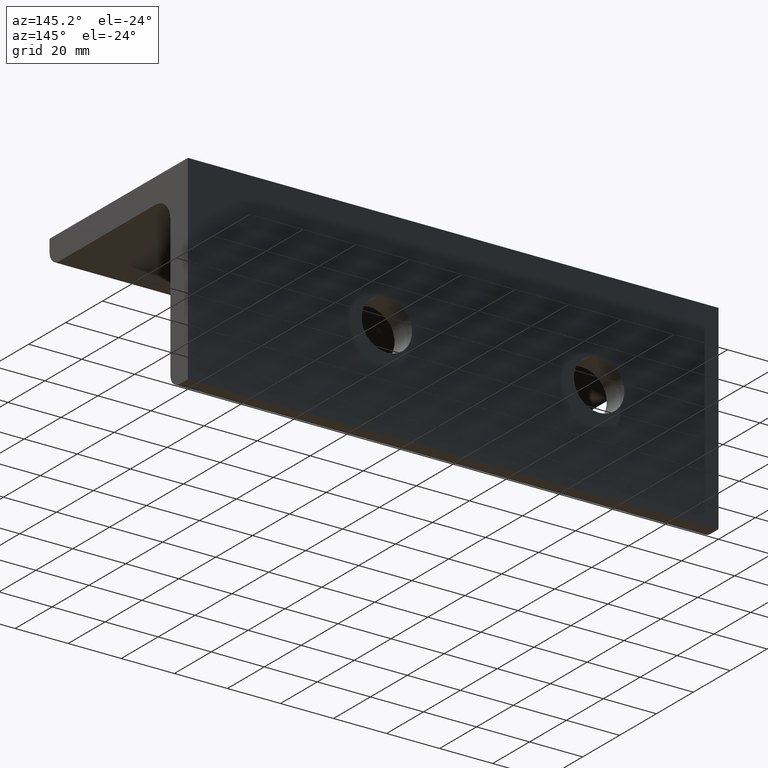
[diagram: clean part render]
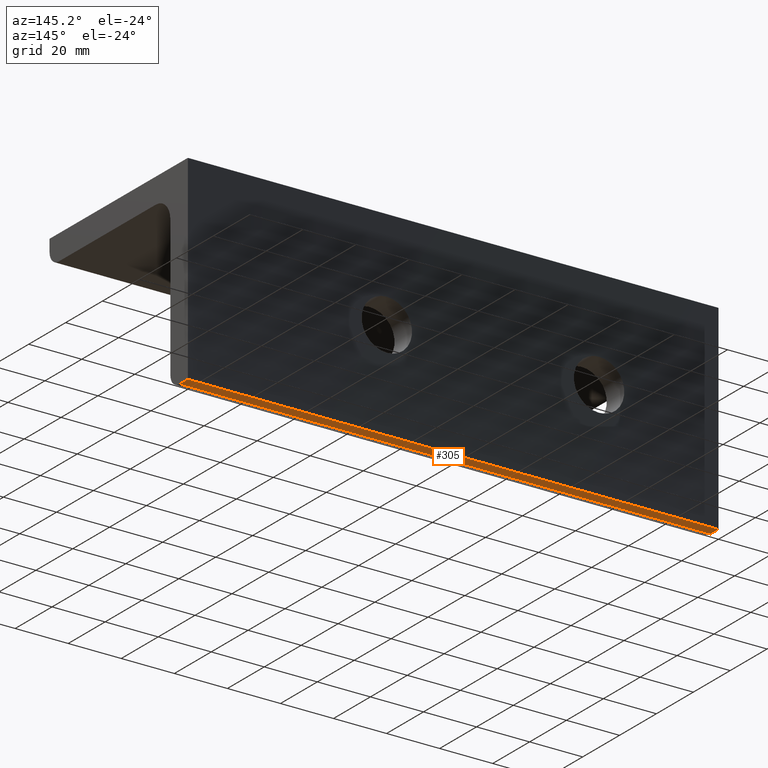
[diagram: same view with one face highlighted and labeled with its STEP entity id]
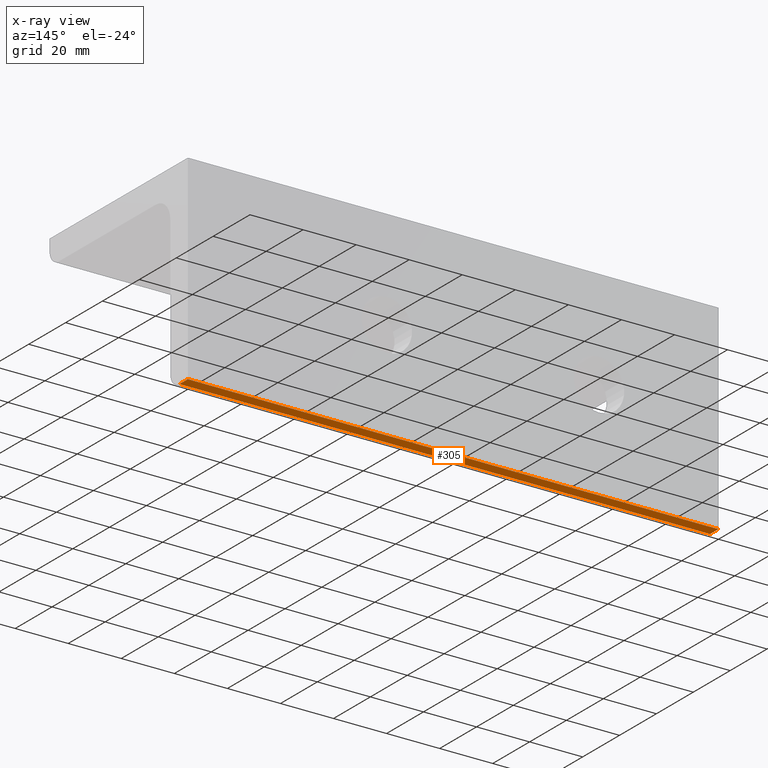
[diagram: x-ray of the same camera — body ghosted, the highlighted face saturated]
A machine part, auxiliary view. The second image highlights one B-rep face of the part: STEP entity #305.
The next image is the same camera in x-ray: the body ghosted, the highlighted face saturated — about 0% of this face is hidden behind the body in this view.
In plain terms, the highlighted planar face has unit normal (-0, 0, 1).
Its self-contained STEP definition (entity closure, byte-faithful):
#1 = CARTESIAN_POINT ( 'NONE',  ( -100.0000000000000000, -8.106328815793483398E-13, -75.00000000000000000 ) ) ;
#8 = VECTOR ( 'NONE', #151, 1000.000000000000000 ) ;
#13 = VERTEX_POINT ( 'NONE', #63 ) ;
#45 = ORIENTED_EDGE ( 'NONE', *, *, #426, .F. ) ;
#63 = CARTESIAN_POINT ( 'NONE',  ( 100.0000000000000000, -7.494005416219806648E-13, -75.00000000000000000 ) ) ;
#66 = LINE ( 'NONE', #326, #8 ) ;
#78 = FACE_OUTER_BOUND ( 'NONE', #431, .T. ) ;
#103 = EDGE_CURVE ( 'NONE', #225, #13, #66, .T. ) ;
#123 = DIRECTION ( 'NONE',  ( 0.000000000000000000, -1.000000000000000000, 1.233581138472396033E-14 ) ) ;
#126 = CARTESIAN_POINT ( 'NONE',  ( -100.0000000000000000, -8.106328815793483398E-13, -75.00000000000000000 ) ) ;
#131 = ORIENTED_EDGE ( 'NONE', *, *, #103, .T. ) ;
#134 = CARTESIAN_POINT ( 'NONE',  ( -100.0000000000000000, -4.500000000000815348, -74.99999999999995737 ) ) ;
#137 = VERTEX_POINT ( 'NONE', #363 ) ;
#151 = DIRECTION ( 'NONE',  ( 1.000000000000000000, 3.061616997868383141E-16, -0.000000000000000000 ) ) ;
#161 = PLANE ( 'NONE',  #374 ) ;
#185 = EDGE_CURVE ( 'NONE', #225, #137, #510, .T. ) ;
#192 = EDGE_CURVE ( 'NONE', #13, #511, #539, .T. ) ;
#196 = CARTESIAN_POINT ( 'NONE',  ( -100.0000000000000000, -8.106328815793483398E-13, -75.00000000000000000 ) ) ;
#203 = DIRECTION ( 'NONE',  ( 0.000000000000000000, -1.000000000000000000, 1.233581138472396033E-14 ) ) ;
#209 = ORIENTED_EDGE ( 'NONE', *, *, #185, .F. ) ;
#211 = CARTESIAN_POINT ( 'NONE',  ( 100.0000000000000000, -7.494005416219806648E-13, -75.00000000000000000 ) ) ;
#216 = ORIENTED_EDGE ( 'NONE', *, *, #192, .T. ) ;
#225 = VERTEX_POINT ( 'NONE', #126 ) ;
#260 = VECTOR ( 'NONE', #434, 1000.000000000000000 ) ;
#305 = ADVANCED_FACE ( 'NONE', ( #78 ), #161, .F. ) ;
#326 = CARTESIAN_POINT ( 'NONE',  ( -100.0000000000000000, -8.106328815793483398E-13, -75.00000000000000000 ) ) ;
#363 = CARTESIAN_POINT ( 'NONE',  ( -100.0000000000000000, -4.500000000000815348, -74.99999999999995737 ) ) ;
#374 = AXIS2_PLACEMENT_3D ( 'NONE', #1, #432, #382 ) ;
#382 = DIRECTION ( 'NONE',  ( 0.000000000000000000, -1.000000000000000000, 1.233581138472396191E-14 ) ) ;
#391 = VECTOR ( 'NONE', #203, 1000.000000000000000 ) ;
#426 = EDGE_CURVE ( 'NONE', #137, #511, #520, .T. ) ;
#431 = EDGE_LOOP ( 'NONE', ( #216, #45, #209, #131 ) ) ;
#432 = DIRECTION ( 'NONE',  ( -3.776752981796919181E-30, 1.233581138472396191E-14, 1.000000000000000000 ) ) ;
#434 = DIRECTION ( 'NONE',  ( 1.000000000000000000, 3.061616997868383141E-16, -0.000000000000000000 ) ) ;
#437 = CARTESIAN_POINT ( 'NONE',  ( 100.0000000000000000, -4.500000000000753175, -74.99999999999995737 ) ) ;
#510 = LINE ( 'NONE', #196, #391 ) ;
#511 = VERTEX_POINT ( 'NONE', #437 ) ;
#520 = LINE ( 'NONE', #134, #260 ) ;
#539 = LINE ( 'NONE', #211, #555 ) ;
#555 = VECTOR ( 'NONE', #123, 1000.000000000000000 ) ;